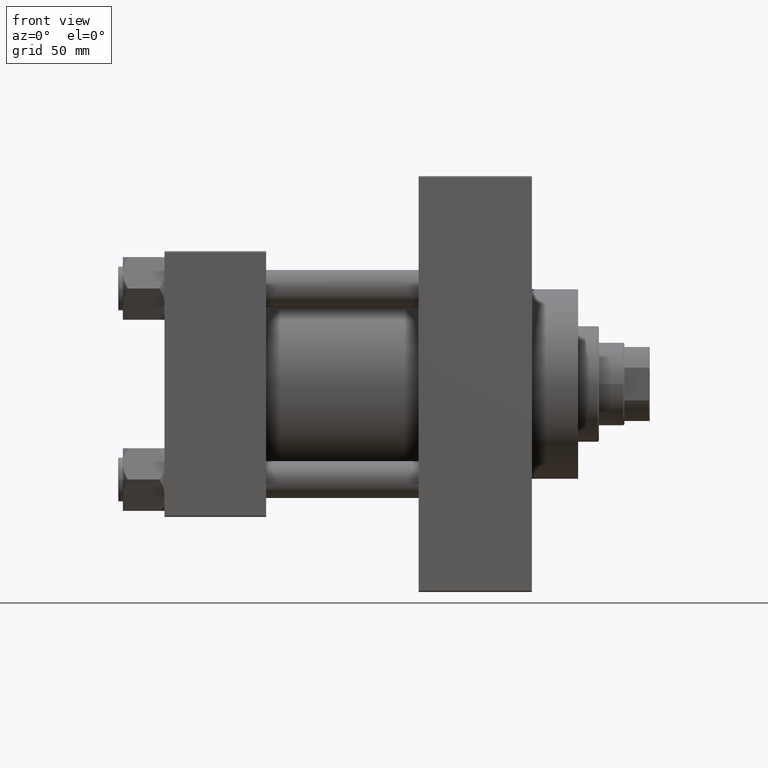
[diagram: clean part render]
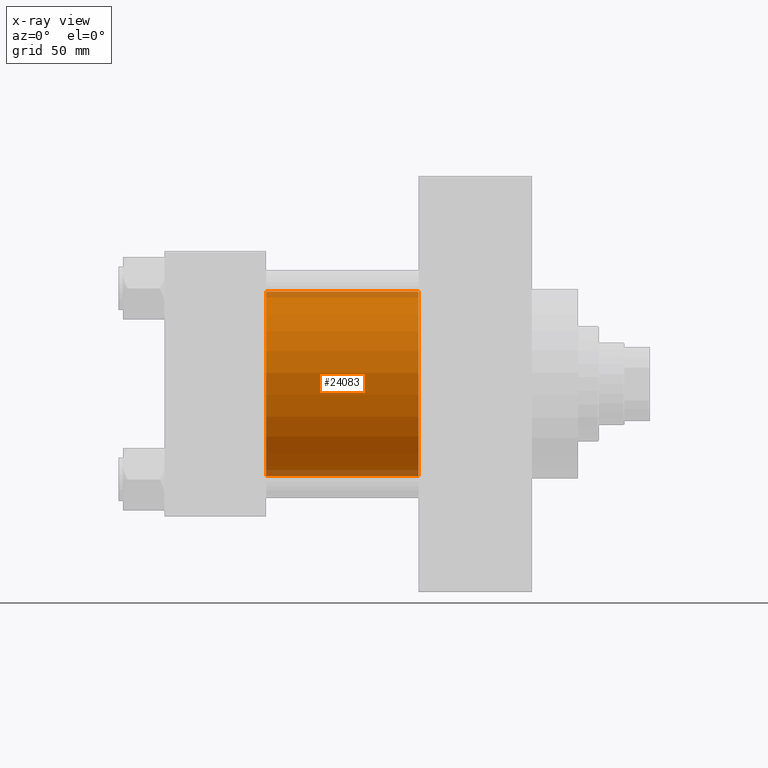
[diagram: x-ray — body ghosted, one internal face saturated and labeled with its STEP entity id]
A machine part, front view, then the same camera in x-ray: the body is ghosted and one INTERNAL B-rep face — a face not visible from any outside direction — is saturated and labeled: STEP entity #24083.
In plain terms, the highlighted cylindrical surface (partial cylindrical patch) has radius 40 mm, axis along (-1, -0, -0).
Its self-contained STEP definition (entity closure, byte-faithful):
#944 = DIRECTION ( 'NONE',  ( 0.000000000000000000, 0.000000000000000000, -1.000000000000000000 ) ) ;
#3468 = DIRECTION ( 'NONE',  ( -1.000000000000000000, -0.000000000000000000, -0.000000000000000000 ) ) ;
#7553 = CARTESIAN_POINT ( 'NONE',  ( 44.00000000000000000, -2.602085213965210642E-15, 40.00000000000000000 ) ) ;
#8237 = CARTESIAN_POINT ( 'NONE',  ( 44.00000000000000000, 2.296501982624201990E-15, -40.00000000000000000 ) ) ;
#9174 = CARTESIAN_POINT ( 'NONE',  ( 110.0000000000000000, -2.602085213965210642E-15, 40.00000000000000000 ) ) ;
#9956 = DIRECTION ( 'NONE',  ( -1.000000000000000000, -0.000000000000000000, -0.000000000000000000 ) ) ;
#12436 = LINE ( 'NONE', #9174, #33515 ) ;
#13304 = CARTESIAN_POINT ( 'NONE',  ( 110.0000000000000000, -2.602085213965210642E-15, 40.00000000000000000 ) ) ;
#13435 = ORIENTED_EDGE ( 'NONE', *, *, #19809, .F. ) ;
#13670 = CIRCLE ( 'NONE', #20131, 40.00000000000000000 ) ;
#14056 = ORIENTED_EDGE ( 'NONE', *, *, #42559, .T. ) ;
#16791 = CARTESIAN_POINT ( 'NONE',  ( 110.0000000000000000, -2.602085213965210642E-15, 0.000000000000000000 ) ) ;
#17027 = CARTESIAN_POINT ( 'NONE',  ( 110.0000000000000000, -2.602085213965210642E-15, 0.000000000000000000 ) ) ;
#17264 = FACE_OUTER_BOUND ( 'NONE', #27492, .T. ) ;
#19322 = DIRECTION ( 'NONE',  ( 1.000000000000000000, 0.000000000000000000, 0.000000000000000000 ) ) ;
#19572 = CARTESIAN_POINT ( 'NONE',  ( 44.00000000000000000, -2.602085213965210642E-15, 0.000000000000000000 ) ) ;
#19809 = EDGE_CURVE ( 'NONE', #20181, #26351, #12436, .T. ) ;
#20131 = AXIS2_PLACEMENT_3D ( 'NONE', #19572, #19322, #42239 ) ;
#20181 = VERTEX_POINT ( 'NONE', #13304 ) ;
#20357 = VERTEX_POINT ( 'NONE', #45269 ) ;
#20821 = DIRECTION ( 'NONE',  ( 1.000000000000000000, 0.000000000000000000, 0.000000000000000000 ) ) ;
#21550 = CYLINDRICAL_SURFACE ( 'NONE', #40109, 40.00000000000000000 ) ;
#24083 = ADVANCED_FACE ( 'NONE', ( #17264 ), #21550, .F. ) ;
#25856 = EDGE_CURVE ( 'NONE', #20181, #20357, #40177, .T. ) ;
#26351 = VERTEX_POINT ( 'NONE', #7553 ) ;
#26389 = CARTESIAN_POINT ( 'NONE',  ( 110.0000000000000000, 2.296501982624201990E-15, -40.00000000000000000 ) ) ;
#27492 = EDGE_LOOP ( 'NONE', ( #40491, #14056, #32867, #13435 ) ) ;
#32867 = ORIENTED_EDGE ( 'NONE', *, *, #46228, .F. ) ;
#33515 = VECTOR ( 'NONE', #43191, 1000.000000000000000 ) ;
#37486 = LINE ( 'NONE', #26389, #46515 ) ;
#39977 = DIRECTION ( 'NONE',  ( 0.000000000000000000, 0.000000000000000000, 1.000000000000000000 ) ) ;
#40109 = AXIS2_PLACEMENT_3D ( 'NONE', #17027, #9956, #39977 ) ;
#40177 = CIRCLE ( 'NONE', #48989, 40.00000000000000000 ) ;
#40491 = ORIENTED_EDGE ( 'NONE', *, *, #25856, .T. ) ;
#42239 = DIRECTION ( 'NONE',  ( 0.000000000000000000, 0.000000000000000000, -1.000000000000000000 ) ) ;
#42559 = EDGE_CURVE ( 'NONE', #20357, #43801, #37486, .T. ) ;
#43191 = DIRECTION ( 'NONE',  ( -1.000000000000000000, -0.000000000000000000, -0.000000000000000000 ) ) ;
#43801 = VERTEX_POINT ( 'NONE', #8237 ) ;
#45269 = CARTESIAN_POINT ( 'NONE',  ( 110.0000000000000000, 2.296501982624201990E-15, -40.00000000000000000 ) ) ;
#46228 = EDGE_CURVE ( 'NONE', #26351, #43801, #13670, .T. ) ;
#46515 = VECTOR ( 'NONE', #3468, 1000.000000000000000 ) ;
#48989 = AXIS2_PLACEMENT_3D ( 'NONE', #16791, #20821, #944 ) ;